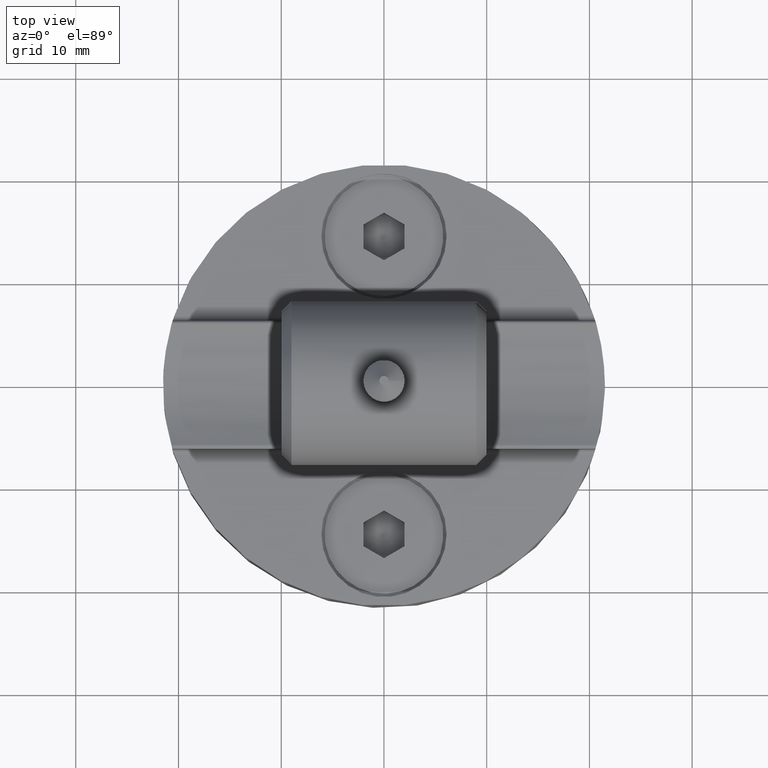
[diagram: clean part render]
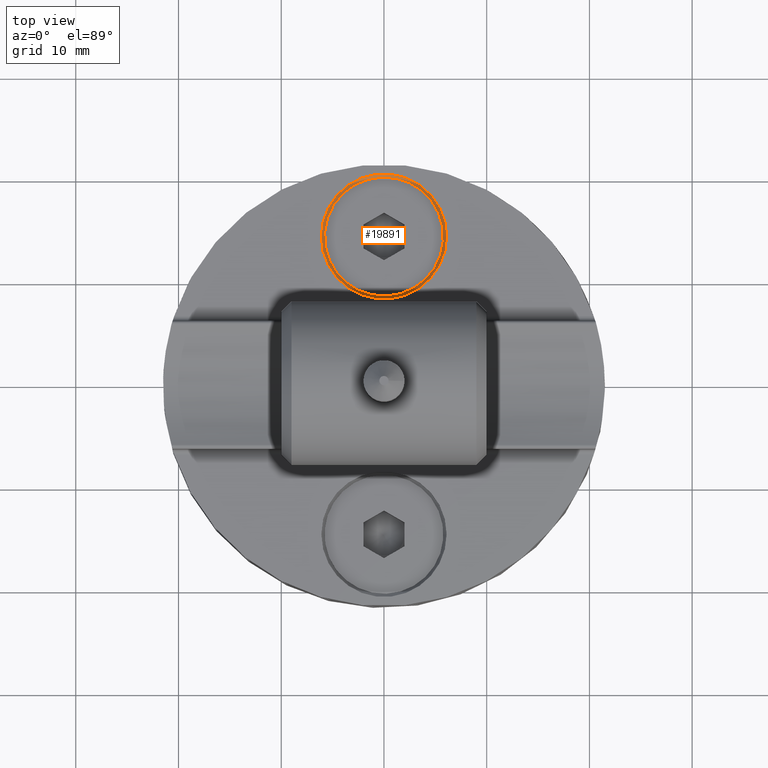
[diagram: same view with one face highlighted and labeled with its STEP entity id]
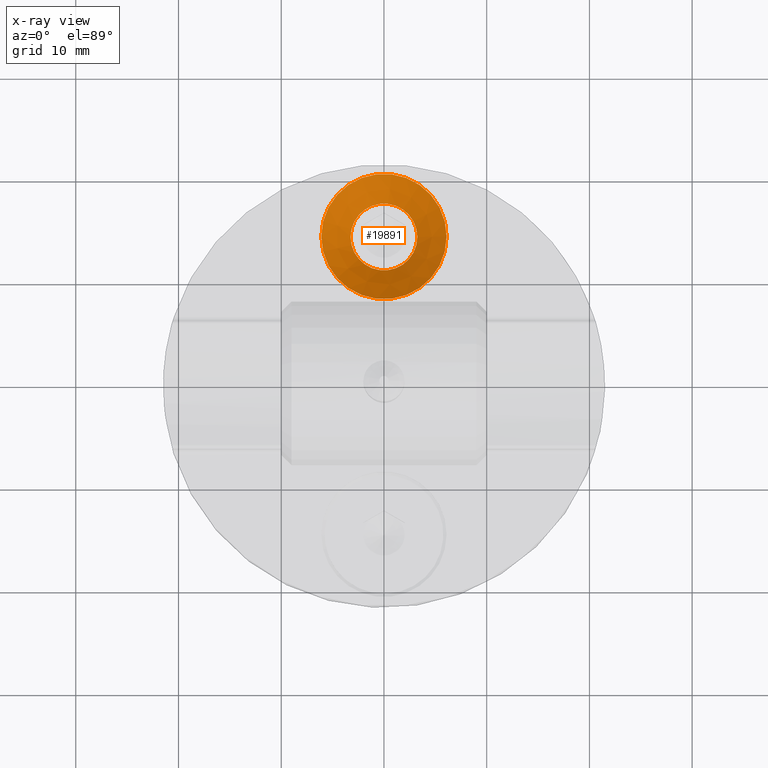
[diagram: x-ray of the same camera — body ghosted, the highlighted face saturated]
A machine part, top view. The second image highlights one B-rep face of the part: STEP entity #19891.
The next image is the same camera in x-ray: the body ghosted, the highlighted face saturated — about 0% of this face is hidden behind the body in this view.
In plain terms, the highlighted conical surface has half-angle 45 deg.
Its self-contained STEP definition (entity closure, byte-faithful):
#504 = EDGE_CURVE ( 'NONE', #6043, #6043, #6349, .T. ) ;
#805 = EDGE_CURVE ( 'NONE', #10192, #10192, #16065, .T. ) ;
#924 = DIRECTION ( 'NONE',  ( -0.000000000000000000, -0.000000000000000000, 1.000000000000000000 ) ) ;
#1722 = CARTESIAN_POINT ( 'NONE',  ( 3.608110681359778522E-15, 14.50000000000000000, 4.000000000000000000 ) ) ;
#3525 = DIRECTION ( 'NONE',  ( 1.000000000000000000, 0.000000000000000000, 0.000000000000000000 ) ) ;
#4534 = ORIENTED_EDGE ( 'NONE', *, *, #504, .T. ) ;
#4790 = DIRECTION ( 'NONE',  ( 1.000000000000000000, 0.000000000000000000, 0.000000000000000000 ) ) ;
#5907 = DIRECTION ( 'NONE',  ( 1.000000000000000000, 0.000000000000000000, 0.000000000000000000 ) ) ;
#6043 = VERTEX_POINT ( 'NONE', #17023 ) ;
#6349 = CIRCLE ( 'NONE', #14258, 6.099999999999999645 ) ;
#8624 = AXIS2_PLACEMENT_3D ( 'NONE', #1722, #19588, #3525 ) ;
#9617 = AXIS2_PLACEMENT_3D ( 'NONE', #15446, #13828, #4790 ) ;
#10192 = VERTEX_POINT ( 'NONE', #17099 ) ;
#10532 = ORIENTED_EDGE ( 'NONE', *, *, #805, .F. ) ;
#13684 = EDGE_LOOP ( 'NONE', ( #10532 ) ) ;
#13828 = DIRECTION ( 'NONE',  ( -0.000000000000000000, -0.000000000000000000, 1.000000000000000000 ) ) ;
#14258 = AXIS2_PLACEMENT_3D ( 'NONE', #15009, #924, #5907 ) ;
#15009 = CARTESIAN_POINT ( 'NONE',  ( 3.608110681359778522E-15, 14.50000000000000000, 4.000000000000000000 ) ) ;
#15022 = CONICAL_SURFACE ( 'NONE', #8624, 6.099999999999999645, 0.7853981633974482790 ) ;
#15446 = CARTESIAN_POINT ( 'NONE',  ( 3.608110681359778522E-15, 14.50000000000000000, 1.150000000000000799 ) ) ;
#15491 = EDGE_LOOP ( 'NONE', ( #4534 ) ) ;
#16065 = CIRCLE ( 'NONE', #9617, 3.250000000000000444 ) ;
#17023 = CARTESIAN_POINT ( 'NONE',  ( 6.100000000000003197, 14.50000000000000000, 4.000000000000000000 ) ) ;
#17099 = CARTESIAN_POINT ( 'NONE',  ( 3.250000000000003553, 14.50000000000000000, 1.150000000000000799 ) ) ;
#19588 = DIRECTION ( 'NONE',  ( -0.000000000000000000, -0.000000000000000000, 1.000000000000000000 ) ) ;
#19891 = ADVANCED_FACE ( 'NONE', ( #20569, #20009 ), #15022, .F. ) ;
#20009 = FACE_OUTER_BOUND ( 'NONE', #15491, .T. ) ;
#20569 = FACE_BOUND ( 'NONE', #13684, .T. ) ;